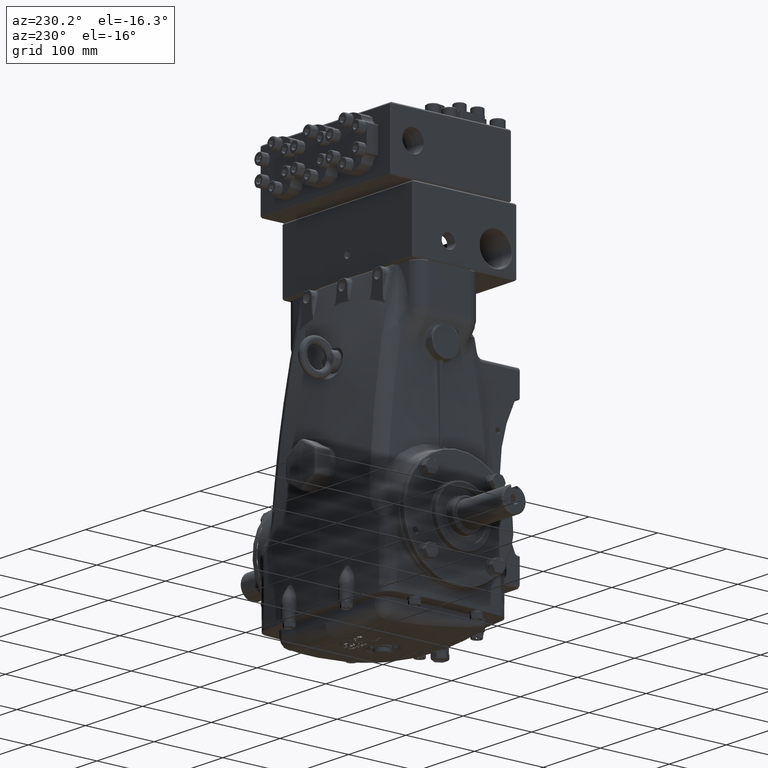
[diagram: clean part render]
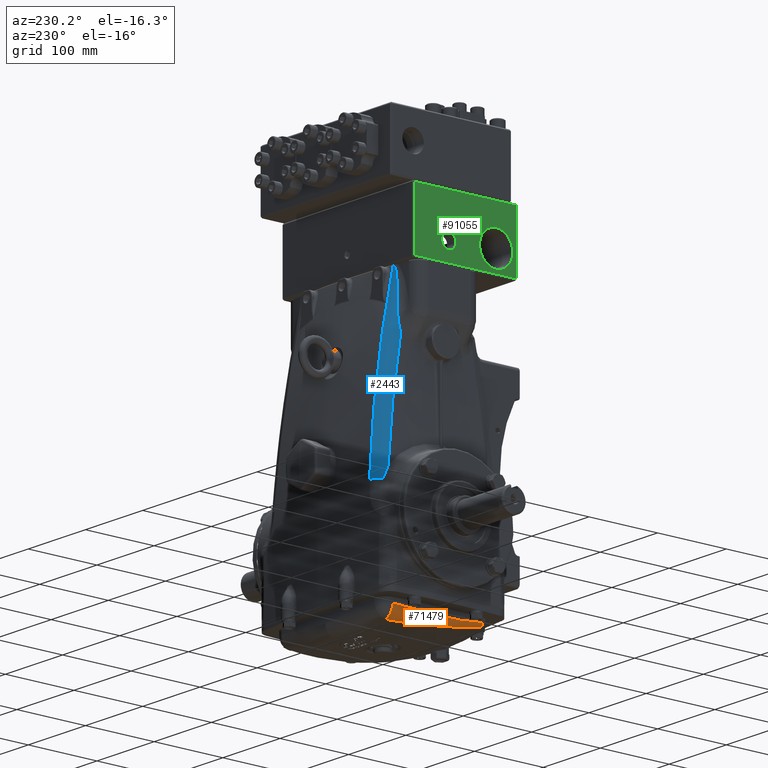
[diagram: same view with three faces highlighted in distinct colors, each labeled with its STEP entity id]
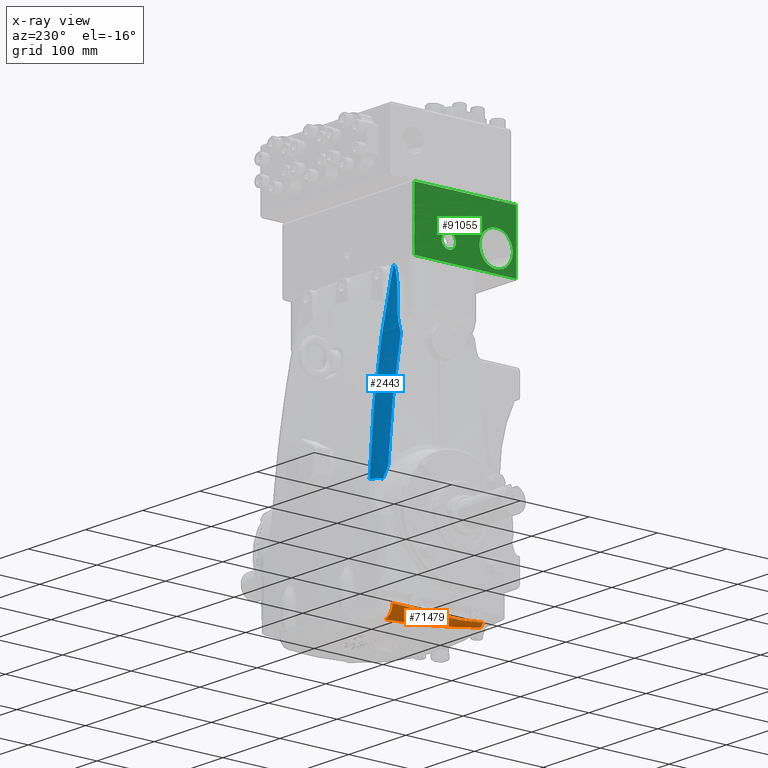
[diagram: x-ray of the same camera — body ghosted, the three highlighted faces saturated]
A machine part, auxiliary view with three faces highlighted in distinct colors.
The next image is the same camera in x-ray (body ghosted, the three faces saturated) — at least one of them is partly hidden behind the body in this view.
Their STEP definitions:

[orange] entity #71479 — the highlighted face is a freeform B-spline surface patch.
#2101 = CARTESIAN_POINT ( 'NONE',  ( -3.748012994205316417, -2.600070373168791971, -4.155819944545164901 ) ) ;
#2221 = VERTEX_POINT ( 'NONE', #37383 ) ;
#2714 = CARTESIAN_POINT ( 'NONE',  ( -3.595150461650975959, -0.8814239703039772333, -4.473783318686258781 ) ) ;
#2897 = CARTESIAN_POINT ( 'NONE',  ( -3.627418846885438253, -1.737789613606274042, -4.343148890057767275 ) ) ;
#4017 = VERTEX_POINT ( 'NONE', #20078 ) ;
#5918 = EDGE_CURVE ( 'NONE', #4017, #2221, #13474, .T. ) ;
#6801 = CARTESIAN_POINT ( 'NONE',  ( -3.858267714659125769, 9.933872777787090664E-06, -4.166876056534943196 ) ) ;
#8786 = CARTESIAN_POINT ( 'NONE',  ( -3.849018650901141037, 0.8659924816696357164, -4.134440698416660176 ) ) ;
#11409 = CARTESIAN_POINT ( 'NONE',  ( -3.813117716448717776, 1.718408939206714781, -4.090829031855981235 ) ) ;
#11974 = CARTESIAN_POINT ( 'NONE',  ( -3.858267483268824627, -0.4266842143578906676, -4.176873745868582510 ) ) ;
#12018 = CARTESIAN_POINT ( 'NONE',  ( -3.587070781286578747, -2.592252362917425224, -4.185073238380468297 ) ) ;
#12191 = CARTESIAN_POINT ( 'NONE',  ( -3.465568033520770364, 0.4015294464267693542, -4.616969034055656174 ) ) ;
#13474 = B_SPLINE_CURVE_WITH_KNOTS ( 'NONE', 3,
 ( #106335, #21496, #59295, #97086, #12191, #49993, #87829, #2897, #40673, #78527 ),
 .UNSPECIFIED., .F., .F.,
 ( 4, 2, 2, 2, 4 ),
 ( 0.0000000000000000000, 0.2499999999999999445, 0.5000000000000000000, 0.7500000000000000000, 1.000000000000000000 ),
 .UNSPECIFIED. ) ;
#14276 = ORIENTED_EDGE ( 'NONE', *, *, #112564, .T. ) ;
#16237 = ORIENTED_EDGE ( 'NONE', *, *, #100220, .F. ) ;
#16797 = CARTESIAN_POINT ( 'NONE',  ( -3.587070781286576526, -2.592252362917436326, -4.185073238380467409 ) ) ;
#18072 = CARTESIAN_POINT ( 'NONE',  ( -3.858267714334776777, 0.002892199707571513345, -4.166808523386766439 ) ) ;
#20078 = CARTESIAN_POINT ( 'NONE',  ( -3.216478555086000668, 2.538454358272328459, -4.682249735505898514 ) ) ;
#20661 = ORIENTED_EDGE ( 'NONE', *, *, #89230, .T. ) ;
#20701 = CARTESIAN_POINT ( 'NONE',  ( -3.858387583601862403, -0.4208965510671880961, -4.176896201735643466 ) ) ;
#21271 = CARTESIAN_POINT ( 'NONE',  ( -3.786314677940371354, -2.143834321483438110, -4.077265623551389773 ) ) ;
#21312 = CARTESIAN_POINT ( 'NONE',  ( -3.813636668103682847, 1.711010898641568412, -4.608108969745897454 ) ) ;
#21496 = CARTESIAN_POINT ( 'NONE',  ( -3.252549966431814266, 2.108784519530685131, -4.692117004519087864 ) ) ;
#24372 = ORIENTED_EDGE ( 'NONE', *, *, #5918, .T. ) ;
#25302 = VERTEX_POINT ( 'NONE', #111968 ) ;
#28226 = CARTESIAN_POINT ( 'NONE',  ( -3.750621400122204463, 2.568999968406809220, -4.059710827512201803 ) ) ;
#29983 = CARTESIAN_POINT ( 'NONE',  ( -3.786314677940371354, -2.143834321483438110, -4.077265623551389773 ) ) ;
#30589 = CARTESIAN_POINT ( 'NONE',  ( -3.857982078439456064, -0.4527785071414766604, -4.479125593149560380 ) ) ;
#31197 = CARTESIAN_POINT ( 'NONE',  ( -3.303189708664001412, 1.681786985764487818, -4.686707106838921000 ) ) ;
#35724 =( BOUNDED_CURVE ( )  B_SPLINE_CURVE ( 2, ( #28226, #66054, #103797 ),
 .UNSPECIFIED., .F., .F. ) 
 B_SPLINE_CURVE_WITH_KNOTS ( ( 3, 3 ),
 ( 0.0000000000000000000, 1.000000000000000000 ),
 .UNSPECIFIED. ) 
 CURVE ( )  GEOMETRIC_REPRESENTATION_ITEM ( )  RATIONAL_B_SPLINE_CURVE ( ( 1.000000000000000000, 0.7586053042103582111, 1.000000000000000000 ) ) 
 REPRESENTATION_ITEM ( '' )  );
#37383 = CARTESIAN_POINT ( 'NONE',  ( -3.587070781286576526, -2.592252362917436326, -4.185073238380467409 ) ) ;
#39278 = FACE_OUTER_BOUND ( 'NONE', #49866, .T. ) ;
#39879 = CARTESIAN_POINT ( 'NONE',  ( -3.784366073027685573, -2.172222874228491030, -4.239013733697134967 ) ) ;
#40220 = EDGE_CURVE ( 'NONE', #118049, #25302, #67720, .T. ) ;
#40494 = CARTESIAN_POINT ( 'NONE',  ( -3.558285079923245053, -0.4532861272314075429, -4.529290593408315857 ) ) ;
#40673 = CARTESIAN_POINT ( 'NONE',  ( -3.622857648761417249, -2.165971908191560491, -4.268036637586034132 ) ) ;
#46582 = CARTESIAN_POINT ( 'NONE',  ( -3.813117716448717776, 1.718408939206714781, -4.090829031855981235 ) ) ;
#49198 = CARTESIAN_POINT ( 'NONE',  ( -3.786374246340548755, 2.143124763859187265, -4.069290335621762900 ) ) ;
#49765 = CARTESIAN_POINT ( 'NONE',  ( -3.858267714659125769, 9.933872777787090664E-06, -4.166876056534943196 ) ) ;
#49809 = CARTESIAN_POINT ( 'NONE',  ( -3.622857648761417249, -2.165971908191560491, -4.268036637586034132 ) ) ;
#49866 = EDGE_LOOP ( 'NONE', ( #14276, #24372, #16237, #20661, #58885 ) ) ;
#49993 = CARTESIAN_POINT ( 'NONE',  ( -3.558285079923245053, -0.4532861272314075429, -4.529290593408315857 ) ) ;
#55871 = CARTESIAN_POINT ( 'NONE',  ( -3.858267308881741187, 0.005774387500164408771, -4.166740454674413563 ) ) ;
#58511 = CARTESIAN_POINT ( 'NONE',  ( -3.858145409280107074, 0.4382095441804221281, -4.156447505999788739 ) ) ;
#58885 = ORIENTED_EDGE ( 'NONE', *, *, #40220, .T. ) ;
#59073 = CARTESIAN_POINT ( 'NONE',  ( -3.813444459587515656, -1.713706081974387008, -4.125484843372965393 ) ) ;
#59119 = CARTESIAN_POINT ( 'NONE',  ( -3.786332936016810535, 2.145676386910618128, -4.610574395272067250 ) ) ;
#59295 = CARTESIAN_POINT ( 'NONE',  ( -3.303189708664001412, 1.681786985764487818, -4.686707106838921000 ) ) ;
#59830 = B_SPLINE_CURVE_WITH_KNOTS ( 'NONE', 3,
 ( #106119, #21271, #59073, #96859, #11974, #49765 ),
 .UNSPECIFIED., .F., .F.,
 ( 4, 2, 4 ),
 ( 0.0000000000000000000, 0.2500000000000002776, 0.4983226116818429419 ),
 .UNSPECIFIED. ) ;
#63909 = CARTESIAN_POINT ( 'NONE',  ( -3.750621400122201798, -2.568999968406805223, -3.994999775048467594 ) ) ;
#66054 = CARTESIAN_POINT ( 'NONE',  ( -3.749585912256805820, 2.581334332048506042, -4.600595598711054279 ) ) ;
#67720 = B_SPLINE_CURVE_WITH_KNOTS ( 'NONE', 3,
 ( #102950, #18072, #55871, #93681, #8786, #46582, #84411, #122081 ),
 .UNSPECIFIED., .F., .F.,
 ( 4, 2, 2, 4 ),
 ( 0.4983226116818429419, 0.5000000000000004441, 0.7500000000000003331, 1.000000000000000000 ),
 .UNSPECIFIED. ) ;
#67826 = CARTESIAN_POINT ( 'NONE',  ( -3.813444459587515656, -1.713706081974387008, -4.125484843372965393 ) ) ;
#68429 = CARTESIAN_POINT ( 'NONE',  ( -3.858567620419324218, 0.4108275518639488699, -4.553702994134236626 ) ) ;
#69049 = CARTESIAN_POINT ( 'NONE',  ( -3.252549966431814266, 2.108784519530685131, -4.692117004519087864 ) ) ;
#71479 = ADVANCED_FACE ( 'NONE', ( #39278 ), #108862, .F. ) ;
#77339 = VERTEX_POINT ( 'NONE', #101316 ) ;
#77729 = CARTESIAN_POINT ( 'NONE',  ( -3.811775919021750170, -1.743341074874007468, -4.310460585365150976 ) ) ;
#78341 = CARTESIAN_POINT ( 'NONE',  ( -3.465568033520770364, 0.4015294464267693542, -4.616969034055656174 ) ) ;
#78527 = CARTESIAN_POINT ( 'NONE',  ( -3.587070781286576526, -2.592252362917436326, -4.185073238380467409 ) ) ;
#84411 = CARTESIAN_POINT ( 'NONE',  ( -3.786374246340548755, 2.143124763859187265, -4.069290335621762900 ) ) ;
#87044 = CARTESIAN_POINT ( 'NONE',  ( -3.750621400122203131, 2.568999968406808776, -4.059710827512201803 ) ) ;
#87650 = CARTESIAN_POINT ( 'NONE',  ( -3.627418846885438253, -1.737789613606274042, -4.343148890057767275 ) ) ;
#87829 = CARTESIAN_POINT ( 'NONE',  ( -3.595150461650975959, -0.8814239703039772333, -4.473783318686258781 ) ) ;
#89230 = EDGE_CURVE ( 'NONE', #77339, #118049, #59830, .T. ) ;
#93681 = CARTESIAN_POINT ( 'NONE',  ( -3.858145409280107074, 0.4382095441804221281, -4.156447505999788739 ) ) ;
#96297 = CARTESIAN_POINT ( 'NONE',  ( -3.849018650901141037, 0.8659924816696357164, -4.134440698416660176 ) ) ;
#96859 = CARTESIAN_POINT ( 'NONE',  ( -3.849347285123557061, -0.8550887522340198110, -4.175133864225490044 ) ) ;
#96906 = CARTESIAN_POINT ( 'NONE',  ( -3.749585912256803155, 2.581334332048530911, -4.600595598711051615 ) ) ;
#97086 = CARTESIAN_POINT ( 'NONE',  ( -3.409742172155981077, 0.8281875570862192726, -4.649148070788859499 ) ) ;
#98986 =( BOUNDED_CURVE ( )  B_SPLINE_CURVE ( 2, ( #63909, #101666, #16797 ),
 .UNSPECIFIED., .F., .F. ) 
 B_SPLINE_CURVE_WITH_KNOTS ( ( 3, 3 ),
 ( 0.0000000000000000000, 1.000000000000000000 ),
 .UNSPECIFIED. ) 
 CURVE ( )  GEOMETRIC_REPRESENTATION_ITEM ( )  RATIONAL_B_SPLINE_CURVE ( ( 1.000000000000000000, 0.7687512746421097942, 1.000000000000000000 ) ) 
 REPRESENTATION_ITEM ( '' )  );
#100220 = EDGE_CURVE ( 'NONE', #77339, #2221, #98986, .T. ) ;
#101316 = CARTESIAN_POINT ( 'NONE',  ( -3.750621400122201798, -2.568999968406805223, -3.994999775048467594 ) ) ;
#101666 = CARTESIAN_POINT ( 'NONE',  ( -3.748012994205316861, -2.600070373168794635, -4.155819944545169342 ) ) ;
#102950 = CARTESIAN_POINT ( 'NONE',  ( -3.858267714659125769, 9.933872777787090664E-06, -4.166876056534943196 ) ) ;
#103797 = CARTESIAN_POINT ( 'NONE',  ( -3.216478555086000668, 2.538454358272328459, -4.682249735505898514 ) ) ;
#105551 = CARTESIAN_POINT ( 'NONE',  ( -3.849468136513261918, -0.8521985870179293876, -4.175300986257751035 ) ) ;
#106119 = CARTESIAN_POINT ( 'NONE',  ( -3.750621400122201798, -2.568999968406805223, -3.994999775048467594 ) ) ;
#106160 = CARTESIAN_POINT ( 'NONE',  ( -3.849754908851117818, 0.8435873613635843649, -4.579659930279360580 ) ) ;
#106335 = CARTESIAN_POINT ( 'NONE',  ( -3.216478555086000668, 2.538454358272328459, -4.682249735505898514 ) ) ;
#106766 = CARTESIAN_POINT ( 'NONE',  ( -3.216478555086000224, 2.538454358272328459, -4.682249735505898514 ) ) ;
#108862 =( BOUNDED_SURFACE ( )  B_SPLINE_SURFACE ( 2, 3, ( 
 ( #114805, #29983, #67826, #105551, #20701, #58511, #96297, #11409, #49198, #87044 ),
 ( #2101, #39879, #77729, #115414, #30589, #68429, #106160, #21312, #59119, #96906 ),
 ( #12018, #49809, #87650, #2714, #40494, #78341, #116021, #31197, #69049, #106766 ) ),
 .UNSPECIFIED., .F., .F., .F. ) 
 B_SPLINE_SURFACE_WITH_KNOTS ( ( 3, 3 ),
 ( 4, 2, 2, 2, 4 ),
 ( 0.0000000000000000000, 1.000000000000000000 ),
 ( -0.0008003282995024951774, 0.03221996846393488517, 0.06524026522737226552, 0.09826056199080965281, 0.1312808587542470262 ),
 .UNSPECIFIED. ) 
 GEOMETRIC_REPRESENTATION_ITEM ( )  RATIONAL_B_SPLINE_SURFACE ( (
 ( 1.000000000000000000, 1.000000000000000000, 1.000000000000000000, 1.000000000000000000, 1.000000000000000000, 1.000000000000000000, 1.000000000000000000, 1.000000000000000000, 1.000000000000000000, 1.000000000000000000),
 ( 0.7687512746421142351, 0.7679053314097404881, 0.7668311923220744175, 0.7645638122210512977, 0.7633697177363332198, 0.7612047652933120467, 0.7602338200490645903, 0.7588817157474476716, 0.7585014178634787996, 0.7586053042103582111),
 ( 1.000000000000000000, 1.000000000000000000, 1.000000000000000000, 1.000000000000000000, 1.000000000000000000, 1.000000000000000000, 1.000000000000000000, 1.000000000000000000, 1.000000000000000000, 1.000000000000000000) ) ) 
 REPRESENTATION_ITEM ( '' )  SURFACE ( )  );
#111968 = CARTESIAN_POINT ( 'NONE',  ( -3.750621400122204463, 2.568999968406809220, -4.059710827512201803 ) ) ;
#112564 = EDGE_CURVE ( 'NONE', #25302, #4017, #35724, .T. ) ;
#114805 = CARTESIAN_POINT ( 'NONE',  ( -3.750621400122204463, -2.568999968406816325, -3.995049615969942014 ) ) ;
#115414 = CARTESIAN_POINT ( 'NONE',  ( -3.848583525291634722, -0.8836223085059041749, -4.430503341263071881 ) ) ;
#116021 = CARTESIAN_POINT ( 'NONE',  ( -3.409742172155981077, 0.8281875570862192726, -4.649148070788859499 ) ) ;
#118049 = VERTEX_POINT ( 'NONE', #6801 ) ;
#122081 = CARTESIAN_POINT ( 'NONE',  ( -3.750621400122204463, 2.568999968406809220, -4.059710827512201803 ) ) ;

[blue] entity #2443 — the highlighted face is a freeform B-spline surface patch.
#1284 = CARTESIAN_POINT ( 'NONE',  ( -3.425113512321852571, 2.026531792189804726, 10.72117684414497418 ) ) ;
#1899 = CARTESIAN_POINT ( 'NONE',  ( -3.144611588856332851, 1.953722050217706174, 11.64100215362413060 ) ) ;
#2272 = EDGE_CURVE ( 'NONE', #83260, #100137, #103050, .T. ) ;
#2443 = ADVANCED_FACE ( 'NONE', ( #79502 ), #70261, .T. ) ;
#3486 = EDGE_CURVE ( 'NONE', #100448, #76615, #40720, .T. ) ;
#4479 = CARTESIAN_POINT ( 'NONE',  ( -3.082298445646426188, 2.326484231684772919, 10.07876845336315874 ) ) ;
#5084 = CARTESIAN_POINT ( 'NONE',  ( -3.682171762108213287, 2.954367736563306313, 6.265654440970484629 ) ) ;
#5696 = CARTESIAN_POINT ( 'NONE',  ( -3.788649543497682348, 2.799174602996818084, 3.229106078057604634 ) ) ;
#5828 = CARTESIAN_POINT ( 'NONE',  ( -3.630274747985410499, 2.141864256455619397, 8.967991098027294328 ) ) ;
#6573 = CARTESIAN_POINT ( 'NONE',  ( -3.788773721439311348, 2.794649350203434857, 3.235045082078513712 ) ) ;
#8522 = ORIENTED_EDGE ( 'NONE', *, *, #63856, .T. ) ;
#8889 = CARTESIAN_POINT ( 'NONE',  ( -3.269204732900450772, 3.494166244084205619, 1.549803905489431921 ) ) ;
#9498 = CARTESIAN_POINT ( 'NONE',  ( -3.066112386415988933, 2.153713693125371531, 10.86498774305070469 ) ) ;
#10132 = CARTESIAN_POINT ( 'NONE',  ( -3.814269082362508279, 2.881727563546267135, 2.183157301090169256 ) ) ;
#10586 = CARTESIAN_POINT ( 'NONE',  ( -3.475132884461882732, 2.056109810165643204, 10.39221283459856515 ) ) ;
#11197 = CARTESIAN_POINT ( 'NONE',  ( -3.196248785558732930, 1.957521553395843217, 11.56183124994848832 ) ) ;
#13788 = CARTESIAN_POINT ( 'NONE',  ( -3.064961872081308325, 2.141177123060190812, 10.92020775159233459 ) ) ;
#14390 = CARTESIAN_POINT ( 'NONE',  ( -3.659516729909861432, 2.760006172627041288, 7.543276944098860959 ) ) ;
#15003 = CARTESIAN_POINT ( 'NONE',  ( -3.760269245680015526, 2.659905205168439757, 4.500378107675504502 ) ) ;
#15132 = CARTESIAN_POINT ( 'NONE',  ( -3.669592097120425223, 2.092360205566928588, 8.612894015470624609 ) ) ;
#15878 = CARTESIAN_POINT ( 'NONE',  ( -3.731566814817936173, 2.485603129191050975, 5.854716524150104462 ) ) ;
#17080 = EDGE_CURVE ( 'NONE', #52741, #100137, #46859, .T. ) ;
#17094 = AXIS2_PLACEMENT_3D ( 'NONE', #37308, #75153, #112851 ) ;
#18378 = CARTESIAN_POINT ( 'NONE',  ( -3.576149117424309853, 2.139323488232271586, 9.457729532381188520 ) ) ;
#18790 = CARTESIAN_POINT ( 'NONE',  ( -3.117120338754920006, 2.672174463103909048, 8.348257340075480926 ) ) ;
#19321 = CARTESIAN_POINT ( 'NONE',  ( -3.565811391544677633, 2.129228831142555123, 9.576604896241546427 ) ) ;
#19421 = CARTESIAN_POINT ( 'NONE',  ( -3.792405264419058231, 3.064612692970520857, 1.764133578097811794 ) ) ;
#19881 = CARTESIAN_POINT ( 'NONE',  ( -3.542766596368535748, 2.108245540889408076, 9.814064409686812596 ) ) ;
#20498 = CARTESIAN_POINT ( 'NONE',  ( -3.247854053815133035, 1.965231277512677011, 11.44703742217718556 ) ) ;
#21110 = CARTESIAN_POINT ( 'NONE',  ( -3.058952848731957275, 1.955623167342798174, 11.69858645062687863 ) ) ;
#23078 = CARTESIAN_POINT ( 'NONE',  ( -3.056149333729739404, 2.043934400726509448, 11.33987919838269320 ) ) ;
#23684 = CARTESIAN_POINT ( 'NONE',  ( -3.645454460734158353, 2.611704385282820340, 8.391559864438930205 ) ) ;
#24286 = CARTESIAN_POINT ( 'NONE',  ( -3.751134849788913872, 2.608716639390830760, 4.923591589836673776 ) ) ;
#25145 = CARTESIAN_POINT ( 'NONE',  ( -3.690115058314008323, 2.151184730222527097, 7.938748593144839383 ) ) ;
#27675 = CARTESIAN_POINT ( 'NONE',  ( -3.580799902365598086, 2.142989470956519593, 9.407484235152326235 ) ) ;
#28088 = CARTESIAN_POINT ( 'NONE',  ( -3.169077725909747123, 3.071167649471457040, 5.810104169129147955 ) ) ;
#28346 = ORIENTED_EDGE ( 'NONE', *, *, #17080, .F. ) ;
#29768 = CARTESIAN_POINT ( 'NONE',  ( -3.323539555675847357, 1.984003420254960348, 11.20907162170096072 ) ) ;
#30386 = CARTESIAN_POINT ( 'NONE',  ( -3.098228102935190797, 1.953479448419665365, 11.68356088856600650 ) ) ;
#30619 = VERTEX_POINT ( 'NONE', #35087 ) ;
#32368 = CARTESIAN_POINT ( 'NONE',  ( -3.047062988844523534, 1.942112879583546281, 11.75850216152274363 ) ) ;
#32493 = ORIENTED_EDGE ( 'NONE', *, *, #46655, .T. ) ;
#32974 = CARTESIAN_POINT ( 'NONE',  ( -3.624739795667941245, 2.361846785260556025, 9.657226260257358419 ) ) ;
#33573 = CARTESIAN_POINT ( 'NONE',  ( -3.733375874080055556, 2.496822600370382617, 5.768929328260283818 ) ) ;
#34186 = CARTESIAN_POINT ( 'NONE',  ( -3.269204732900452104, 3.494166244084205619, 1.549803905489430367 ) ) ;
#34313 = CARTESIAN_POINT ( 'NONE',  ( -3.597355062208697163, 2.150247036588929905, 9.247534800881268779 ) ) ;
#34451 = CARTESIAN_POINT ( 'NONE',  ( -3.770580920303959083, 3.142302170779629922, 1.540680269885116749 ) ) ;
#35087 = CARTESIAN_POINT ( 'NONE',  ( -3.048361850561355890, 1.956657500317994680, 11.69856850100573276 ) ) ;
#35753 = B_SPLINE_CURVE_WITH_KNOTS ( 'NONE', 3,
 ( #104185, #19321, #57123, #94918 ),
 .UNSPECIFIED., .F., .F.,
 ( 4, 4 ),
 ( 0.0000000000000000000, 0.009124745447547868635 ),
 .UNSPECIFIED. ) ;
#37308 = CARTESIAN_POINT ( 'NONE',  ( -3.203942594157655588, 2.868976490605358531, 1.508823190593775010 ) ) ;
#37373 = CARTESIAN_POINT ( 'NONE',  ( -3.216296056407198733, 3.322383220422969519, 3.684119343499719257 ) ) ;
#39066 = CARTESIAN_POINT ( 'NONE',  ( -3.395550305680836267, 2.012001240785472600, 10.88484654828792308 ) ) ;
#39674 = CARTESIAN_POINT ( 'NONE',  ( -3.137753295990115543, 1.953489988434661040, 11.64905505856250656 ) ) ;
#40720 = B_SPLINE_CURVE_WITH_KNOTS ( 'NONE', 3,
 ( #27675, #65509, #103248, #18378 ),
 .UNSPECIFIED., .F., .F.,
 ( 4, 4 ),
 ( 0.0000000000000000000, 0.001285064076274404152 ),
 .UNSPECIFIED. ) ;
#41704 = ORIENTED_EDGE ( 'NONE', *, *, #77859, .F. ) ;
#42267 = CARTESIAN_POINT ( 'NONE',  ( -3.617881291539023714, 2.273791004135345517, 10.07883757417355319 ) ) ;
#42871 = CARTESIAN_POINT ( 'NONE',  ( -3.724749659922824474, 2.436103823054936335, 6.191136171432662039 ) ) ;
#43482 = CARTESIAN_POINT ( 'NONE',  ( -3.246661546152605826, 3.440174841299046271, 2.409381110722794705 ) ) ;
#43604 = CARTESIAN_POINT ( 'NONE',  ( -3.625453803538600805, 2.144548388560649776, 9.007910192479023692 ) ) ;
#44356 = CARTESIAN_POINT ( 'NONE',  ( -3.801213099687899444, 2.841866375676329604, 2.709332421064478247 ) ) ;
#46655 = EDGE_CURVE ( 'NONE', #117812, #30619, #47907, .T. ) ;
#46679 = CARTESIAN_POINT ( 'NONE',  ( -3.257994996955968503, 3.467318692098095845, 1.977233875776326810 ) ) ;
#46859 = B_SPLINE_CURVE_WITH_KNOTS ( 'NONE', 3,
 ( #109975, #25145, #62983, #100747, #15878, #53665, #91474, #6573, #44356, #82192 ),
 .UNSPECIFIED., .F., .F.,
 ( 4, 2, 2, 2, 4 ),
 ( 0.08476750981346586888, 0.1249840975113978014, 0.1652006852093297340, 0.2054172729072616943, 0.2456338606051936269 ),
 .UNSPECIFIED. ) ;
#47298 = CARTESIAN_POINT ( 'NONE',  ( -3.057369498427757737, 2.057451332273736444, 11.28228488240600136 ) ) ;
#47907 = B_SPLINE_CURVE_WITH_KNOTS ( 'NONE', 3,
 ( #19881, #57686, #95477, #10586, #48380, #86210, #1284, #39066, #76900, #114597, #29768, #67603, #105345, #20498, #58297, #96091, #11197, #48986, #86825, #1899, #39674, #77513, #115205, #30386, #68222, #105953, #21110, #58907 ),
 .UNSPECIFIED., .F., .F.,
 ( 4, 2, 2, 2, 2, 2, 2, 2, 2, 2, 2, 2, 2, 4 ),
 ( 0.0000000000000000000, 0.01272267982654253990, 0.01908401973981389485, 0.02544535965308524980, 0.03180669956635660128, 0.03816803947962795623, 0.04134870943626371698, 0.04452937939289947078, 0.04611971437121743095, 0.04771004934953538418, 0.04850521683869440936, 0.04930038432785343455, 0.05009555181701246668, 0.05089071930617149186 ),
 .UNSPECIFIED. ) ;
#48380 = CARTESIAN_POINT ( 'NONE',  ( -3.463598773325415436, 2.048677792663032182, 10.47456393592918289 ) ) ;
#48986 = CARTESIAN_POINT ( 'NONE',  ( -3.175331520119971440, 1.955497972035431298, 11.59829125815896234 ) ) ;
#50080 = ORIENTED_EDGE ( 'NONE', *, *, #74369, .F. ) ;
#51568 = CARTESIAN_POINT ( 'NONE',  ( -3.604048377092111455, 2.088550987447082452, 10.91983584963829834 ) ) ;
#52183 = CARTESIAN_POINT ( 'NONE',  ( -3.699400011502169239, 2.239784669858119859, 7.455433125177638232 ) ) ;
#52741 = VERTEX_POINT ( 'NONE', #94449 ) ;
#52803 = CARTESIAN_POINT ( 'NONE',  ( -3.225786521989106870, 3.367115606732822730, 3.268402680746357980 ) ) ;
#52926 = CARTESIAN_POINT ( 'NONE',  ( -3.653754965434140356, 2.120718746964249224, 8.769831607828354691 ) ) ;
#53665 = CARTESIAN_POINT ( 'NONE',  ( -3.753557971363301160, 2.623800068678024289, 4.808583868586544519 ) ) ;
#56588 = CARTESIAN_POINT ( 'NONE',  ( -3.091790677973859314, 2.424351262851354605, 9.608981028187290718 ) ) ;
#56681 = ORIENTED_EDGE ( 'NONE', *, *, #2272, .T. ) ;
#57123 = CARTESIAN_POINT ( 'NONE',  ( -3.554708010239511662, 2.118902273423434401, 9.695388305858859468 ) ) ;
#57227 = CARTESIAN_POINT ( 'NONE',  ( -3.807797924443275583, 2.977543044408082817, 1.978319764446337281 ) ) ;
#57686 = CARTESIAN_POINT ( 'NONE',  ( -3.526110223087381979, 2.093381093767650025, 9.979598701209544842 ) ) ;
#58297 = CARTESIAN_POINT ( 'NONE',  ( -3.232443174415202236, 1.962397510778285836, 11.48619949557369857 ) ) ;
#58907 = CARTESIAN_POINT ( 'NONE',  ( -3.048361850561355890, 1.956657500317994680, 11.69856850100573276 ) ) ;
#60888 = CARTESIAN_POINT ( 'NONE',  ( -3.597071034874167683, 1.991304745253442698, 11.33939218619141975 ) ) ;
#61497 = CARTESIAN_POINT ( 'NONE',  ( -3.683218887657213170, 2.090051777215203632, 8.295105779658376477 ) ) ;
#62110 = CARTESIAN_POINT ( 'NONE',  ( -3.196430448770180011, 3.229208018188942653, 4.553310141910483999 ) ) ;
#62236 = CARTESIAN_POINT ( 'NONE',  ( -3.680044730410442888, 2.053194663346450621, 8.457199941519622399 ) ) ;
#62983 = CARTESIAN_POINT ( 'NONE',  ( -3.700236916683070199, 2.241993115511200063, 7.419026472001160499 ) ) ;
#63639 = ORIENTED_EDGE ( 'NONE', *, *, #112684, .T. ) ;
#63856 = EDGE_CURVE ( 'NONE', #76615, #117812, #35753, .T. ) ;
#65509 = CARTESIAN_POINT ( 'NONE',  ( -3.579157275893888990, 2.141968797427053151, 9.424238806829373871 ) ) ;
#65918 = CARTESIAN_POINT ( 'NONE',  ( -3.160157785945038711, 3.011595640940678997, 6.234294448528373778 ) ) ;
#66538 = CARTESIAN_POINT ( 'NONE',  ( -3.770580920303959083, 3.142302170779629922, 1.540680269885116749 ) ) ;
#67603 = CARTESIAN_POINT ( 'NONE',  ( -3.288433655448595783, 1.974316455701512263, 11.32870975276895287 ) ) ;
#68222 = CARTESIAN_POINT ( 'NONE',  ( -3.089106361407773615, 1.953774575474548136, 11.68886016557627094 ) ) ;
#70210 = CARTESIAN_POINT ( 'NONE',  ( -3.589918111933611211, 1.889644707873581631, 11.75727767587871853 ) ) ;
#70261 =( BOUNDED_SURFACE ( )  B_SPLINE_SURFACE ( 3, 2, ( 
 ( #32368, #70210, #107918 ),
 ( #23078, #60888, #98654 ),
 ( #13788, #51568, #89404 ),
 ( #4479, #42267, #80110 ),
 ( #117767, #32974, #70810 ),
 ( #108519, #23684, #61497 ),
 ( #99258, #14390, #52183 ),
 ( #90005, #5084, #42871 ),
 ( #80714, #118367, #33573 ),
 ( #71412, #109122, #24286 ),
 ( #62110, #99886, #15003 ),
 ( #52803, #90618, #5696 ),
 ( #43482, #81320, #118974 ),
 ( #34186, #72012, #109723 ) ),
 .UNSPECIFIED., .F., .F., .T. ) 
 B_SPLINE_SURFACE_WITH_KNOTS ( ( 4, 2, 2, 2, 2, 2, 4 ),
 ( 3, 3 ),
 ( 0.3419978113029756850, 0.3744830089578065069, 0.4069682066126373288, 0.4719386019222990281, 0.5044237995771299055, 0.5369089972319607273, 0.6018793925416223711 ),
 ( 0.0000000000000000000, 1.000000000000000000 ),
 .UNSPECIFIED. ) 
 GEOMETRIC_REPRESENTATION_ITEM ( )  RATIONAL_B_SPLINE_SURFACE ( (
 ( 1.000000000000000000, 0.7560130559632651792, 1.000000000000000000),
 ( 1.000000000000000000, 0.7571492924045932771, 1.000000000000000000),
 ( 1.000000000000000000, 0.7582354962214225003, 1.000000000000000000),
 ( 1.000000000000000000, 0.7603087553690203171, 1.000000000000000000),
 ( 1.000000000000000000, 0.7612961270030141891, 1.000000000000000000),
 ( 1.000000000000000000, 0.7641083035491569309, 1.000000000000000000),
 ( 1.000000000000000000, 0.7657817902121620834, 1.000000000000000000),
 ( 1.000000000000000000, 0.7679959464944710046, 1.000000000000000000),
 ( 1.000000000000000000, 0.7686845463808132939, 1.000000000000000000),
 ( 1.000000000000000000, 0.7699625865603482167, 1.000000000000000000),
 ( 1.000000000000000000, 0.7705521760810135623, 1.000000000000000000),
 ( 1.000000000000000000, 0.7721734963203804591, 1.000000000000000000),
 ( 1.000000000000000000, 0.7730579457102991769, 1.000000000000000000),
 ( 1.000000000000000000, 0.7737454532319997247, 1.000000000000000000) ) ) 
 REPRESENTATION_ITEM ( '' )  SURFACE ( )  );
#70549 = CIRCLE ( 'NONE', #17094, 0.6299212598425197873 ) ;
#70810 = CARTESIAN_POINT ( 'NONE',  ( -3.658804494557767573, 1.837281659631256669, 9.549821321188925793 ) ) ;
#71377 = CARTESIAN_POINT ( 'NONE',  ( -3.814269082362508279, 2.881727563546267135, 2.183157301090169256 ) ) ;
#71412 = CARTESIAN_POINT ( 'NONE',  ( -3.186966253152299089, 3.178518602334162946, 4.981063251276674819 ) ) ;
#72012 = CARTESIAN_POINT ( 'NONE',  ( -3.781998062819874828, 3.439989269677553807, 1.559684158456561720 ) ) ;
#72143 = CARTESIAN_POINT ( 'NONE',  ( -3.588644919235312702, 2.147864103866095498, 9.327466105824086640 ) ) ;
#74369 = EDGE_CURVE ( 'NONE', #94700, #30619, #120594, .T. ) ;
#74658 = CARTESIAN_POINT ( 'NONE',  ( -3.576149117424309853, 2.139323488232271586, 9.457729532381188520 ) ) ;
#75153 = DIRECTION ( 'NONE',  ( -0.02584747050126739651, 0.06270016655278089213, -0.9976976482797480505 ) ) ;
#75189 = EDGE_LOOP ( 'NONE', ( #32493, #50080, #41704, #56681, #28346, #63639, #115009, #8522 ) ) ;
#75221 = CARTESIAN_POINT ( 'NONE',  ( -3.196827980763150112, 3.231218854497723392, 4.535599982320241530 ) ) ;
#76615 = VERTEX_POINT ( 'NONE', #74658 ) ;
#76900 = CARTESIAN_POINT ( 'NONE',  ( -3.379483495355243949, 2.004827407082622859, 10.96636951802282312 ) ) ;
#77513 = CARTESIAN_POINT ( 'NONE',  ( -3.123111626546796415, 1.953234862241756575, 11.66408944877293052 ) ) ;
#77859 = EDGE_CURVE ( 'NONE', #83260, #94700, #70549, .T. ) ;
#79502 = FACE_OUTER_BOUND ( 'NONE', #75189, .T. ) ;
#80110 = CARTESIAN_POINT ( 'NONE',  ( -3.650641123888094697, 1.748344757290344109, 9.967172917615114258 ) ) ;
#80714 = CARTESIAN_POINT ( 'NONE',  ( -3.168538870737483748, 3.067713329856495807, 5.835469309587299591 ) ) ;
#81320 = CARTESIAN_POINT ( 'NONE',  ( -3.760632177187649638, 3.386144853829423873, 2.418613819507564155 ) ) ;
#81448 = CARTESIAN_POINT ( 'NONE',  ( -3.615903419059625534, 2.148282731123987155, 9.087771712523789347 ) ) ;
#82192 = CARTESIAN_POINT ( 'NONE',  ( -3.814269082362508279, 2.881727563546267135, 2.183157301090169256 ) ) ;
#83260 = VERTEX_POINT ( 'NONE', #34451 ) ;
#84513 = CARTESIAN_POINT ( 'NONE',  ( -3.247199614774384013, 3.435775041202732805, 2.404314508298649233 ) ) ;
#85132 = CARTESIAN_POINT ( 'NONE',  ( -3.048361850561355890, 1.956657500317994680, 11.69856850100573276 ) ) ;
#86210 = CARTESIAN_POINT ( 'NONE',  ( -3.438590167990755564, 2.033891319480003457, 10.63902130253098832 ) ) ;
#86802 = CARTESIAN_POINT ( 'NONE',  ( -3.580799902365598086, 2.142989470956519593, 9.407484235152326235 ) ) ;
#86825 = CARTESIAN_POINT ( 'NONE',  ( -3.163954216183606949, 1.954624748665025891, 11.61605272439056691 ) ) ;
#89404 = CARTESIAN_POINT ( 'NONE',  ( -3.634034561642262684, 1.561231582636855686, 10.79967266109354540 ) ) ;
#90005 = CARTESIAN_POINT ( 'NONE',  ( -3.159573981068620085, 3.007584296943471625, 6.262205731746902870 ) ) ;
#90618 = CARTESIAN_POINT ( 'NONE',  ( -3.741269416928316716, 3.313199642596796668, 3.276727043862713185 ) ) ;
#90743 = CARTESIAN_POINT ( 'NONE',  ( -3.644514689806643393, 2.131245168979943649, 8.848770191558882559 ) ) ;
#90752 = CARTESIAN_POINT ( 'NONE',  ( -3.269204732900450772, 3.494166244084205619, 1.549803905489431921 ) ) ;
#91253 = CARTESIAN_POINT ( 'NONE',  ( -3.542766596368535748, 2.108245540889408076, 9.814064409686812596 ) ) ;
#91474 = CARTESIAN_POINT ( 'NONE',  ( -3.764946817707797155, 2.685616327955809624, 4.284649282652233104 ) ) ;
#94394 = CARTESIAN_POINT ( 'NONE',  ( -3.083322352733954830, 2.337157510713007369, 10.02836769579707266 ) ) ;
#94449 = CARTESIAN_POINT ( 'NONE',  ( -3.680044730410442888, 2.053194663346450621, 8.457199941519622399 ) ) ;
#94700 = VERTEX_POINT ( 'NONE', #90752 ) ;
#94918 = CARTESIAN_POINT ( 'NONE',  ( -3.542766596368535748, 2.108245540889408076, 9.814064409686812596 ) ) ;
#95015 = CARTESIAN_POINT ( 'NONE',  ( -3.812953688536298458, 2.930920300305807746, 2.082303641742098588 ) ) ;
#95477 = CARTESIAN_POINT ( 'NONE',  ( -3.507493284119139076, 2.078444153699458230, 10.14487202249964426 ) ) ;
#96091 = CARTESIAN_POINT ( 'NONE',  ( -3.205752225059768090, 1.958674480447313293, 11.54314204520084708 ) ) ;
#98654 = CARTESIAN_POINT ( 'NONE',  ( -3.625590179549488479, 1.463042293424011708, 11.21488468228997881 ) ) ;
#99258 = CARTESIAN_POINT ( 'NONE',  ( -3.133196056143836117, 2.813169425873078389, 7.540067853943227760 ) ) ;
#99886 = CARTESIAN_POINT ( 'NONE',  ( -3.714694376460200065, 3.175668598951369326, 4.558885180942064075 ) ) ;
#100011 = CARTESIAN_POINT ( 'NONE',  ( -3.676183625752012851, 2.074507989343169712, 8.534897784484202887 ) ) ;
#100137 = VERTEX_POINT ( 'NONE', #71377 ) ;
#100448 = VERTEX_POINT ( 'NONE', #86802 ) ;
#100747 = CARTESIAN_POINT ( 'NONE',  ( -3.720962081858113724, 2.409200364965605079, 6.377039946395764325 ) ) ;
#102726 = B_SPLINE_CURVE_WITH_KNOTS ( 'NONE', 3,
 ( #62236, #100011, #15132, #52926, #90743, #5828, #43604, #81448, #119096, #34313, #72143, #109843 ),
 .UNSPECIFIED., .F., .F.,
 ( 4, 2, 2, 2, 2, 4 ),
 ( 0.0000000000000000000, 0.006105293281051692687, 0.01221058656210338537, 0.01526323320262923389, 0.01831587984315508413, 0.02442117312420670483 ),
 .UNSPECIFIED. ) ;
#103050 = B_SPLINE_CURVE_WITH_KNOTS ( 'NONE', 3,
 ( #66538, #104288, #19421, #57227, #95015, #10132 ),
 .UNSPECIFIED., .F., .F.,
 ( 4, 2, 4 ),
 ( 0.0000000000000000000, 0.5000000000000000000, 1.000000000000000000 ),
 .UNSPECIFIED. ) ;
#103248 = CARTESIAN_POINT ( 'NONE',  ( -3.577605098274455830, 2.140745234908720818, 9.440986947469372836 ) ) ;
#103658 = CARTESIAN_POINT ( 'NONE',  ( -3.133913998702548387, 2.819013614672498669, 7.504584520848139206 ) ) ;
#104185 = CARTESIAN_POINT ( 'NONE',  ( -3.576149117424309853, 2.139323488232271586, 9.457729532381188520 ) ) ;
#104288 = CARTESIAN_POINT ( 'NONE',  ( -3.782174297275330499, 3.105067683978651960, 1.653932639205494493 ) ) ;
#105345 = CARTESIAN_POINT ( 'NONE',  ( -3.275843467519653718, 1.971181975992469138, 11.36837621607076620 ) ) ;
#105953 = CARTESIAN_POINT ( 'NONE',  ( -3.069401841915799789, 1.954845582119939751, 11.69643858961700289 ) ) ;
#107918 = CARTESIAN_POINT ( 'NONE',  ( -3.616874770236321979, 1.360230636718298802, 11.62905843821257434 ) ) ;
#108519 = CARTESIAN_POINT ( 'NONE',  ( -3.116313128745268557, 2.664885723971083920, 8.388751505512237472 ) ) ;
#109122 = CARTESIAN_POINT ( 'NONE',  ( -3.706231425358892384, 3.125056899071798178, 4.986101976194560415 ) ) ;
#109723 = CARTESIAN_POINT ( 'NONE',  ( -3.830823294112212896, 2.927496912473777968, 1.528741570307350139 ) ) ;
#109843 = CARTESIAN_POINT ( 'NONE',  ( -3.580799902365598086, 2.142989470956519593, 9.407484235152326235 ) ) ;
#109975 = CARTESIAN_POINT ( 'NONE',  ( -3.680044730410442888, 2.053194663346450621, 8.457199941519622399 ) ) ;
#112684 = EDGE_CURVE ( 'NONE', #52741, #100448, #102726, .T. ) ;
#112851 = DIRECTION ( 'NONE',  ( 0.0000000000000000000, 0.9980310921419518477, 0.06272112178479140321 ) ) ;
#112917 = CARTESIAN_POINT ( 'NONE',  ( -3.187411999549493391, 3.180972947435750431, 4.960797234820099710 ) ) ;
#114597 = CARTESIAN_POINT ( 'NONE',  ( -3.343438491307858751, 1.990833437488420898, 11.12847261618670025 ) ) ;
#115009 = ORIENTED_EDGE ( 'NONE', *, *, #3486, .T. ) ;
#115205 = CARTESIAN_POINT ( 'NONE',  ( -3.115317381886174797, 1.953208774553339744, 11.67110744268334876 ) ) ;
#117767 = CARTESIAN_POINT ( 'NONE',  ( -3.090823749522751296, 2.414561174761125972, 9.656936045481318232 ) ) ;
#117812 = VERTEX_POINT ( 'NONE', #91253 ) ;
#118367 = CARTESIAN_POINT ( 'NONE',  ( -3.689971348518871874, 3.014427983727832050, 5.839391051182142967 ) ) ;
#118974 = CARTESIAN_POINT ( 'NONE',  ( -3.808892059467134050, 2.872960910714121407, 2.379199177741197602 ) ) ;
#119096 = CARTESIAN_POINT ( 'NONE',  ( -3.611175073036743566, 2.149335404892715129, 9.127704501144831895 ) ) ;
#120594 = B_SPLINE_CURVE_WITH_KNOTS ( 'NONE', 3,
 ( #8889, #46679, #84513, #122180, #37373, #75221, #112917, #28088, #65918, #103658, #18790, #56588, #94394, #9498, #47298, #85132 ),
 .UNSPECIFIED., .F., .F.,
 ( 4, 2, 2, 2, 2, 2, 2, 4 ),
 ( 0.0000000000000000000, 0.03264243258107458329, 0.06528486516214915270, 0.09792729774322372904, 0.1305697303242982776, 0.1958545954864474858, 0.2284970280675220899, 0.2611394606485967218 ),
 .UNSPECIFIED. ) ;
#122180 = CARTESIAN_POINT ( 'NONE',  ( -3.226349643378954912, 3.363306529552681390, 3.257775733343591718 ) ) ;

[green] entity #91055 — the highlighted planar face has unit normal (1, 0, 0).
#282 = CARTESIAN_POINT ( 'NONE',  ( -4.527559055118111964, 5.463695987328526437E-16, 12.87401574803149451 ) ) ;
#2534 = CIRCLE ( 'NONE', #71792, 0.4133858250000002066 ) ;
#3381 = CIRCLE ( 'NONE', #72653, 0.4133858250000002066 ) ;
#4283 = DIRECTION ( 'NONE',  ( 0.0000000000000000000, -1.000000000000000000, 0.0000000000000000000 ) ) ;
#6039 = FACE_OUTER_BOUND ( 'NONE', #113621, .T. ) ;
#8528 = CARTESIAN_POINT ( 'NONE',  ( -4.527559055118111964, 1.968503937007873184, 15.31496062992126106 ) ) ;
#9236 = EDGE_CURVE ( 'NONE', #51250, #44473, #70532, .T. ) ;
#9941 = EDGE_CURVE ( 'NONE', #119267, #23920, #27666, .T. ) ;
#10348 = VECTOR ( 'NONE', #89386, 39.37007874015748143 ) ;
#11986 = VERTEX_POINT ( 'NONE', #117751 ) ;
#13091 = AXIS2_PLACEMENT_3D ( 'NONE', #117772, #32979, #70814 ) ;
#13769 = LINE ( 'NONE', #51549, #10348 ) ;
#18606 = CARTESIAN_POINT ( 'NONE',  ( -4.527559055118111964, -3.858267716535432879, 11.85039370078740006 ) ) ;
#18746 = DIRECTION ( 'NONE',  ( -1.000000000000000000, -0.0000000000000000000, -0.0000000000000000000 ) ) ;
#23920 = VERTEX_POINT ( 'NONE', #92495 ) ;
#24246 = EDGE_CURVE ( 'NONE', #44473, #51250, #42529, .T. ) ;
#26939 = CARTESIAN_POINT ( 'NONE',  ( -4.527559055118111964, -2.716535433070865757, 12.07677165299212341 ) ) ;
#27666 = LINE ( 'NONE', #65498, #106194 ) ;
#29249 = EDGE_CURVE ( 'NONE', #11986, #119267, #51375, .T. ) ;
#29453 = EDGE_LOOP ( 'NONE', ( #89890, #110813 ) ) ;
#32898 = DIRECTION ( 'NONE',  ( 0.0000000000000000000, 0.0000000000000000000, 1.000000000000000000 ) ) ;
#32979 = DIRECTION ( 'NONE',  ( -1.000000000000000000, -0.0000000000000000000, -0.0000000000000000000 ) ) ;
#34526 = CARTESIAN_POINT ( 'NONE',  ( -4.527559055118111964, -3.937007874015747699, 15.31496062992126106 ) ) ;
#38059 = DIRECTION ( 'NONE',  ( -1.000000000000000000, -0.0000000000000000000, -0.0000000000000000000 ) ) ;
#42529 = CIRCLE ( 'NONE', #94812, 0.9547244100000007450 ) ;
#43816 = FACE_BOUND ( 'NONE', #103604, .T. ) ;
#44473 = VERTEX_POINT ( 'NONE', #26939 ) ;
#46315 = DIRECTION ( 'NONE',  ( 0.0000000000000000000, 0.0000000000000000000, -1.000000000000000000 ) ) ;
#51250 = VERTEX_POINT ( 'NONE', #97717 ) ;
#51375 = LINE ( 'NONE', #89214, #86767 ) ;
#51549 = CARTESIAN_POINT ( 'NONE',  ( -4.527559055118111964, -3.937007874015747699, 15.23622047244094624 ) ) ;
#51707 = VERTEX_POINT ( 'NONE', #52299 ) ;
#52299 = CARTESIAN_POINT ( 'NONE',  ( -4.527559055118111964, 1.968503937007873184, 15.23622047244094624 ) ) ;
#53538 = EDGE_CURVE ( 'NONE', #93006, #78568, #2534, .T. ) ;
#54799 = ORIENTED_EDGE ( 'NONE', *, *, #111898, .T. ) ;
#56548 = DIRECTION ( 'NONE',  ( 0.0000000000000000000, 0.0000000000000000000, 1.000000000000000000 ) ) ;
#64938 = LINE ( 'NONE', #8528, #114937 ) ;
#65498 = CARTESIAN_POINT ( 'NONE',  ( -4.527559055118111964, -3.858267716535432879, 15.31496062992126106 ) ) ;
#69785 = ORIENTED_EDGE ( 'NONE', *, *, #29249, .T. ) ;
#70532 = CIRCLE ( 'NONE', #13091, 0.9547244100000007450 ) ;
#70814 = DIRECTION ( 'NONE',  ( 0.0000000000000000000, 0.0000000000000000000, 1.000000000000000000 ) ) ;
#71792 = AXIS2_PLACEMENT_3D ( 'NONE', #282, #38059, #75913 ) ;
#72356 = DIRECTION ( 'NONE',  ( 1.000000000000000000, 0.0000000000000000000, 0.0000000000000000000 ) ) ;
#72653 = AXIS2_PLACEMENT_3D ( 'NONE', #103614, #18746, #56548 ) ;
#75913 = DIRECTION ( 'NONE',  ( 0.0000000000000000000, 0.0000000000000000000, 1.000000000000000000 ) ) ;
#78568 = VERTEX_POINT ( 'NONE', #116666 ) ;
#78718 = EDGE_CURVE ( 'NONE', #78568, #93006, #3381, .T. ) ;
#80034 = CARTESIAN_POINT ( 'NONE',  ( -4.527559055118111964, -2.716535433070865757, 13.03149606299212415 ) ) ;
#81667 = FACE_BOUND ( 'NONE', #29453, .T. ) ;
#82113 = ORIENTED_EDGE ( 'NONE', *, *, #93273, .T. ) ;
#83272 = CARTESIAN_POINT ( 'NONE',  ( -4.527559055118111964, 5.969947614727664255E-16, 12.46062992303149386 ) ) ;
#83327 = ORIENTED_EDGE ( 'NONE', *, *, #78718, .F. ) ;
#85790 = ORIENTED_EDGE ( 'NONE', *, *, #53538, .F. ) ;
#86767 = VECTOR ( 'NONE', #4283, 39.37007874015748143 ) ;
#89214 = CARTESIAN_POINT ( 'NONE',  ( -4.527559055118111964, -3.937007874015747699, 11.85039370078740006 ) ) ;
#89386 = DIRECTION ( 'NONE',  ( 0.0000000000000000000, 1.000000000000000000, 0.0000000000000000000 ) ) ;
#89890 = ORIENTED_EDGE ( 'NONE', *, *, #9236, .F. ) ;
#91055 = ADVANCED_FACE ( 'NONE', ( #6039, #43816, #81667 ), #119322, .F. ) ;
#91398 = ORIENTED_EDGE ( 'NONE', *, *, #9941, .T. ) ;
#92495 = CARTESIAN_POINT ( 'NONE',  ( -4.527559055118111964, -3.858267716535432879, 15.23622047244094624 ) ) ;
#93006 = VERTEX_POINT ( 'NONE', #83272 ) ;
#93273 = EDGE_CURVE ( 'NONE', #23920, #51707, #13769, .T. ) ;
#94812 = AXIS2_PLACEMENT_3D ( 'NONE', #80034, #117694, #32898 ) ;
#97717 = CARTESIAN_POINT ( 'NONE',  ( -4.527559055118111964, -2.716535433070865757, 13.98622047299212490 ) ) ;
#103237 = DIRECTION ( 'NONE',  ( 0.0000000000000000000, 0.0000000000000000000, 1.000000000000000000 ) ) ;
#103604 = EDGE_LOOP ( 'NONE', ( #83327, #85790 ) ) ;
#103614 = CARTESIAN_POINT ( 'NONE',  ( -4.527559055118111964, 5.463695987328526437E-16, 12.87401574803149451 ) ) ;
#106194 = VECTOR ( 'NONE', #103237, 39.37007874015748143 ) ;
#110064 = DIRECTION ( 'NONE',  ( 0.0000000000000000000, 0.0000000000000000000, -1.000000000000000000 ) ) ;
#110813 = ORIENTED_EDGE ( 'NONE', *, *, #24246, .F. ) ;
#111898 = EDGE_CURVE ( 'NONE', #51707, #11986, #64938, .T. ) ;
#113621 = EDGE_LOOP ( 'NONE', ( #69785, #91398, #82113, #54799 ) ) ;
#114937 = VECTOR ( 'NONE', #46315, 39.37007874015748143 ) ;
#116666 = CARTESIAN_POINT ( 'NONE',  ( -4.527559055118111964, 5.463695987328526437E-16, 13.28740157303149516 ) ) ;
#117694 = DIRECTION ( 'NONE',  ( -1.000000000000000000, -0.0000000000000000000, -0.0000000000000000000 ) ) ;
#117751 = CARTESIAN_POINT ( 'NONE',  ( -4.527559055118111964, 1.968503937007873184, 11.85039370078740006 ) ) ;
#117772 = CARTESIAN_POINT ( 'NONE',  ( -4.527559055118111964, -2.716535433070865757, 13.03149606299212415 ) ) ;
#119024 = AXIS2_PLACEMENT_3D ( 'NONE', #34526, #72356, #110064 ) ;
#119267 = VERTEX_POINT ( 'NONE', #18606 ) ;
#119322 = PLANE ( 'NONE',  #119024 ) ;